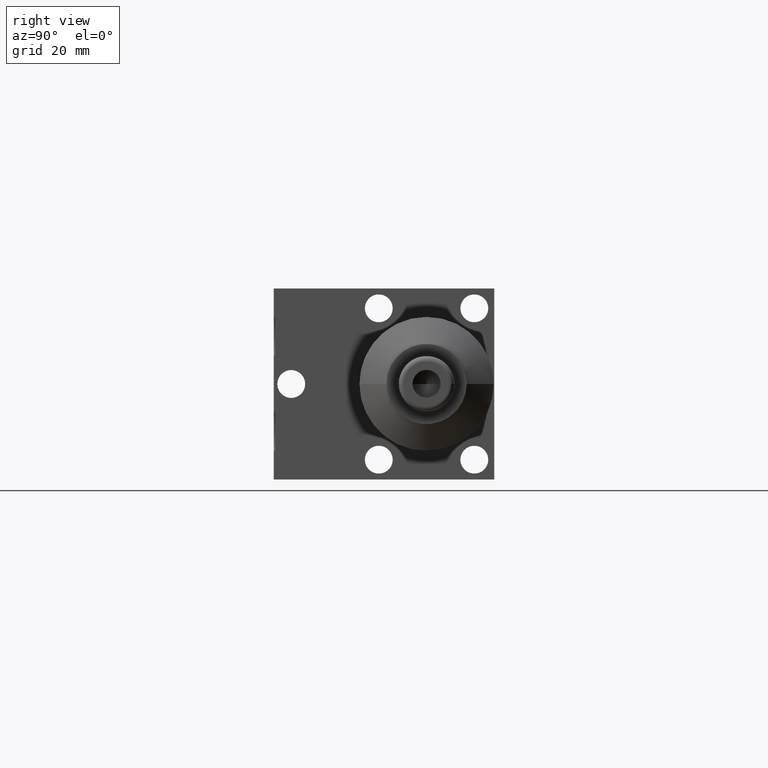
[diagram: clean part render]
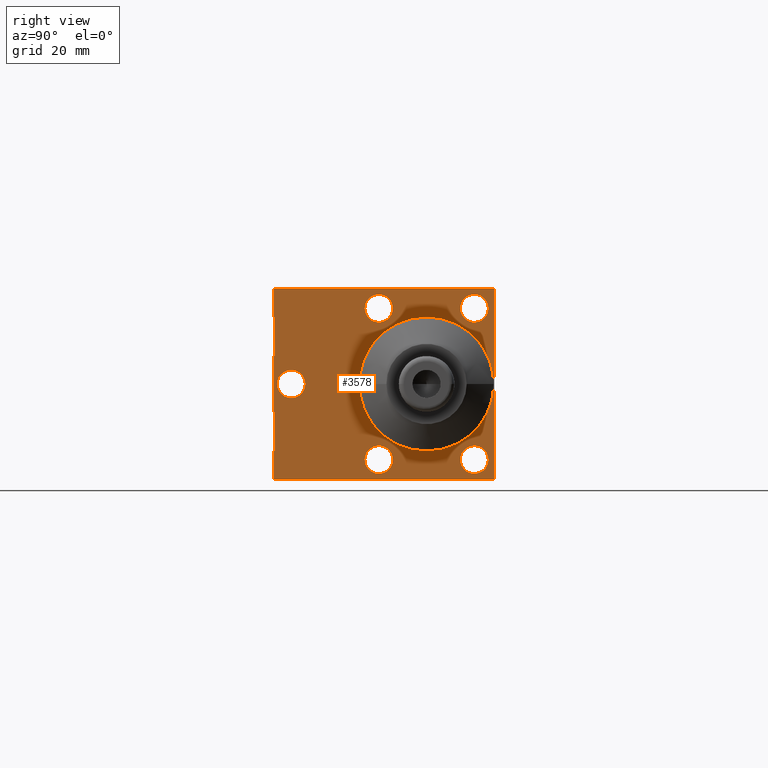
[diagram: same view with one face highlighted and labeled with its STEP entity id]
A machine part, right view. The second image highlights one B-rep face of the part: STEP entity #3578.
In plain terms, the highlighted planar face has unit normal (1, 0, 0).
Its self-contained STEP definition (entity closure, byte-faithful):
#634=CARTESIAN_POINT('',(0.E0,0.E0,0.E0));
#635=DIRECTION('',(1.E0,0.E0,0.E0));
#636=DIRECTION('',(0.E0,0.E0,1.E0));
#637=AXIS2_PLACEMENT_3D('',#634,#635,#636);
#642=CARTESIAN_POINT('',(0.E0,0.E0,0.E0));
#643=DIRECTION('',(1.E0,0.E0,0.E0));
#644=DIRECTION('',(0.E0,0.E0,-1.E0));
#645=AXIS2_PLACEMENT_3D('',#642,#643,#644);
#650=CARTESIAN_POINT('',(0.E0,3.75E-1,5.94E-1));
#651=DIRECTION('',(-1.E0,0.E0,0.E0));
#652=DIRECTION('',(0.E0,-1.E0,0.E0));
#653=AXIS2_PLACEMENT_3D('',#650,#651,#652);
#658=CARTESIAN_POINT('',(0.E0,3.75E-1,5.94E-1));
#659=DIRECTION('',(-1.E0,0.E0,0.E0));
#660=DIRECTION('',(0.E0,1.E0,0.E0));
#661=AXIS2_PLACEMENT_3D('',#658,#659,#660);
#666=CARTESIAN_POINT('',(0.E0,3.75E-1,-5.94E-1));
#667=DIRECTION('',(-1.E0,0.E0,0.E0));
#668=DIRECTION('',(0.E0,-1.E0,0.E0));
#669=AXIS2_PLACEMENT_3D('',#666,#667,#668);
#674=CARTESIAN_POINT('',(0.E0,3.75E-1,-5.94E-1));
#675=DIRECTION('',(-1.E0,0.E0,0.E0));
#676=DIRECTION('',(0.E0,1.E0,0.E0));
#677=AXIS2_PLACEMENT_3D('',#674,#675,#676);
#682=CARTESIAN_POINT('',(0.E0,-3.75E-1,5.94E-1));
#683=DIRECTION('',(-1.E0,0.E0,0.E0));
#684=DIRECTION('',(0.E0,-1.E0,0.E0));
#685=AXIS2_PLACEMENT_3D('',#682,#683,#684);
#690=CARTESIAN_POINT('',(0.E0,-3.75E-1,5.94E-1));
#691=DIRECTION('',(-1.E0,0.E0,0.E0));
#692=DIRECTION('',(0.E0,1.E0,0.E0));
#693=AXIS2_PLACEMENT_3D('',#690,#691,#692);
#698=CARTESIAN_POINT('',(0.E0,-3.75E-1,-5.94E-1));
#699=DIRECTION('',(-1.E0,0.E0,0.E0));
#700=DIRECTION('',(0.E0,-1.E0,0.E0));
#701=AXIS2_PLACEMENT_3D('',#698,#699,#700);
#706=CARTESIAN_POINT('',(0.E0,-3.75E-1,-5.94E-1));
#707=DIRECTION('',(-1.E0,0.E0,0.E0));
#708=DIRECTION('',(0.E0,1.E0,0.E0));
#709=AXIS2_PLACEMENT_3D('',#706,#707,#708);
#714=CARTESIAN_POINT('',(0.E0,-1.062E0,0.E0));
#715=DIRECTION('',(-1.E0,0.E0,0.E0));
#716=DIRECTION('',(0.E0,-1.E0,0.E0));
#717=AXIS2_PLACEMENT_3D('',#714,#715,#716);
#722=CARTESIAN_POINT('',(0.E0,-1.062E0,0.E0));
#723=DIRECTION('',(-1.E0,0.E0,0.E0));
#724=DIRECTION('',(0.E0,1.E0,0.E0));
#725=AXIS2_PLACEMENT_3D('',#722,#723,#724);
#730=DIRECTION('',(0.E0,0.E0,1.E0));
#731=VECTOR('',#730,2.985900199270E-1);
#732=CARTESIAN_POINT('',(0.E0,-1.189E0,-5.242950099635E-1));
#733=LINE('',#732,#731);
#737=DIRECTION('',(0.E0,1.E0,0.E0));
#738=VECTOR('',#737,1.E-2);
#739=CARTESIAN_POINT('',(0.E0,-1.199E0,-2.257049900365E-1));
#740=LINE('',#739,#738);
#744=DIRECTION('',(0.E0,1.E0,0.E0));
#745=VECTOR('',#744,1.E-2);
#746=CARTESIAN_POINT('',(0.E0,-1.199E0,2.257049900365E-1));
#747=LINE('',#746,#745);
#751=DIRECTION('',(0.E0,0.E0,-1.E0));
#752=VECTOR('',#751,2.985900199270E-1);
#753=CARTESIAN_POINT('',(0.E0,-1.189E0,5.242950099635E-1));
#754=LINE('',#753,#752);
#758=DIRECTION('',(0.E0,1.E0,0.E0));
#759=VECTOR('',#758,1.E-2);
#760=CARTESIAN_POINT('',(0.E0,-1.199E0,5.242950099635E-1));
#761=LINE('',#760,#759);
#765=DIRECTION('',(0.E0,1.E0,0.E0));
#766=VECTOR('',#765,1.E-2);
#767=CARTESIAN_POINT('',(0.E0,-1.199E0,-5.242950099635E-1));
#768=LINE('',#767,#766);
#942=DIRECTION('',(0.E0,1.E0,0.E0));
#943=VECTOR('',#942,1.73E0);
#944=CARTESIAN_POINT('',(0.E0,-1.199E0,7.5E-1));
#945=LINE('',#944,#943);
#964=DIRECTION('',(0.E0,0.E0,1.E0));
#965=VECTOR('',#964,2.257049900365E-1);
#966=CARTESIAN_POINT('',(0.E0,-1.199E0,5.242950099635E-1));
#967=LINE('',#966,#965);
#986=DIRECTION('',(0.E0,0.E0,1.E0));
#987=VECTOR('',#986,2.257049900365E-1);
#988=CARTESIAN_POINT('',(0.E0,-1.199E0,-7.5E-1));
#989=LINE('',#988,#987);
#1001=DIRECTION('',(0.E0,0.E0,1.E0));
#1002=VECTOR('',#1001,4.514099800730E-1);
#1003=CARTESIAN_POINT('',(0.E0,-1.199E0,-2.257049900365E-1));
#1004=LINE('',#1003,#1002);
#1615=DIRECTION('',(0.E0,-1.E0,0.E0));
#1616=VECTOR('',#1615,1.73E0);
#1617=CARTESIAN_POINT('',(0.E0,5.31E-1,-7.5E-1));
#1618=LINE('',#1617,#1616);
#1629=DIRECTION('',(0.E0,0.E0,-1.E0));
#1630=VECTOR('',#1629,1.5E0);
#1631=CARTESIAN_POINT('',(0.E0,5.31E-1,7.5E-1));
#1632=LINE('',#1631,#1630);
#2712=CARTESIAN_POINT('',(0.E0,0.E0,5.26E-1));
#2713=CARTESIAN_POINT('',(0.E0,0.E0,-5.26E-1));
#2714=VERTEX_POINT('',#2712);
#2715=VERTEX_POINT('',#2713);
#2724=CARTESIAN_POINT('',(0.E0,-1.199E0,7.5E-1));
#2725=CARTESIAN_POINT('',(0.E0,5.31E-1,7.5E-1));
#2726=VERTEX_POINT('',#2724);
#2727=VERTEX_POINT('',#2725);
#2728=CARTESIAN_POINT('',(0.E0,5.31E-1,-7.5E-1));
#2729=CARTESIAN_POINT('',(0.E0,-1.199E0,-7.5E-1));
#2730=VERTEX_POINT('',#2728);
#2731=VERTEX_POINT('',#2729);
#2748=CARTESIAN_POINT('',(0.E0,2.655E-1,5.94E-1));
#2749=CARTESIAN_POINT('',(0.E0,4.845E-1,5.94E-1));
#2750=VERTEX_POINT('',#2748);
#2751=VERTEX_POINT('',#2749);
#2810=CARTESIAN_POINT('',(0.E0,-1.199E0,-5.242950099635E-1));
#2812=VERTEX_POINT('',#2810);
#2832=CARTESIAN_POINT('',(0.E0,-1.189E0,5.242950099635E-1));
#2833=CARTESIAN_POINT('',(0.E0,-1.189E0,2.257049900365E-1));
#2834=VERTEX_POINT('',#2832);
#2835=VERTEX_POINT('',#2833);
#2836=CARTESIAN_POINT('',(0.E0,-1.199E0,5.242950099635E-1));
#2837=VERTEX_POINT('',#2836);
#2838=CARTESIAN_POINT('',(0.E0,-1.199E0,2.257049900365E-1));
#2839=VERTEX_POINT('',#2838);
#2842=CARTESIAN_POINT('',(0.E0,-1.189E0,-5.242950099635E-1));
#2843=CARTESIAN_POINT('',(0.E0,-1.189E0,-2.257049900365E-1));
#2844=VERTEX_POINT('',#2842);
#2845=VERTEX_POINT('',#2843);
#2846=CARTESIAN_POINT('',(0.E0,-1.199E0,-2.257049900365E-1));
#2847=VERTEX_POINT('',#2846);
#2868=CARTESIAN_POINT('',(0.E0,2.655E-1,-5.94E-1));
#2869=CARTESIAN_POINT('',(0.E0,4.845E-1,-5.94E-1));
#2870=VERTEX_POINT('',#2868);
#2871=VERTEX_POINT('',#2869);
#2876=CARTESIAN_POINT('',(0.E0,-4.845E-1,5.94E-1));
#2877=CARTESIAN_POINT('',(0.E0,-2.655E-1,5.94E-1));
#2878=VERTEX_POINT('',#2876);
#2879=VERTEX_POINT('',#2877);
#2884=CARTESIAN_POINT('',(0.E0,-4.845E-1,-5.94E-1));
#2885=CARTESIAN_POINT('',(0.E0,-2.655E-1,-5.94E-1));
#2886=VERTEX_POINT('',#2884);
#2887=VERTEX_POINT('',#2885);
#2892=CARTESIAN_POINT('',(0.E0,-1.1715E0,0.E0));
#2893=CARTESIAN_POINT('',(0.E0,-9.525E-1,0.E0));
#2894=VERTEX_POINT('',#2892);
#2895=VERTEX_POINT('',#2893);
#3513=CARTESIAN_POINT('',(0.E0,0.E0,0.E0));
#3514=DIRECTION('',(1.E0,0.E0,0.E0));
#3515=DIRECTION('',(0.E0,0.E0,-1.E0));
#3516=AXIS2_PLACEMENT_3D('',#3513,#3514,#3515);
#3517=PLANE('',#3516);
#3519=ORIENTED_EDGE('',*,*,#3518,.T.);
#3521=ORIENTED_EDGE('',*,*,#3520,.F.);
#3523=ORIENTED_EDGE('',*,*,#3522,.T.);
#3525=ORIENTED_EDGE('',*,*,#3524,.T.);
#3527=ORIENTED_EDGE('',*,*,#3526,.F.);
#3529=ORIENTED_EDGE('',*,*,#3528,.F.);
#3531=ORIENTED_EDGE('',*,*,#3530,.T.);
#3533=ORIENTED_EDGE('',*,*,#3532,.T.);
#3535=ORIENTED_EDGE('',*,*,#3534,.T.);
#3537=ORIENTED_EDGE('',*,*,#3536,.T.);
#3539=ORIENTED_EDGE('',*,*,#3538,.T.);
#3541=ORIENTED_EDGE('',*,*,#3540,.T.);
#3542=EDGE_LOOP('',(#3519,#3521,#3523,#3525,#3527,#3529,#3531,#3533,#3535,#3537,
#3539,#3541));
#3543=FACE_OUTER_BOUND('',#3542,.F.);
#3545=ORIENTED_EDGE('',*,*,#3544,.F.);
#3547=ORIENTED_EDGE('',*,*,#3546,.F.);
#3548=EDGE_LOOP('',(#3545,#3547));
#3549=FACE_BOUND('',#3548,.F.);
#3551=ORIENTED_EDGE('',*,*,#3550,.F.);
#3553=ORIENTED_EDGE('',*,*,#3552,.F.);
#3554=EDGE_LOOP('',(#3551,#3553));
#3555=FACE_BOUND('',#3554,.F.);
#3557=ORIENTED_EDGE('',*,*,#3556,.F.);
#3559=ORIENTED_EDGE('',*,*,#3558,.F.);
#3560=EDGE_LOOP('',(#3557,#3559));
#3561=FACE_BOUND('',#3560,.F.);
#3563=ORIENTED_EDGE('',*,*,#3562,.F.);
#3565=ORIENTED_EDGE('',*,*,#3564,.F.);
#3566=EDGE_LOOP('',(#3563,#3565));
#3567=FACE_BOUND('',#3566,.F.);
#3569=ORIENTED_EDGE('',*,*,#3568,.F.);
#3571=ORIENTED_EDGE('',*,*,#3570,.F.);
#3572=EDGE_LOOP('',(#3569,#3571));
#3573=FACE_BOUND('',#3572,.F.);
#3574=ORIENTED_EDGE('',*,*,#3491,.T.);
#3575=ORIENTED_EDGE('',*,*,#3507,.T.);
#3576=EDGE_LOOP('',(#3574,#3575));
#3577=FACE_BOUND('',#3576,.F.);
#638=CIRCLE('',#637,5.26E-1);
#646=CIRCLE('',#645,5.26E-1);
#654=CIRCLE('',#653,1.095E-1);
#662=CIRCLE('',#661,1.095E-1);
#670=CIRCLE('',#669,1.095E-1);
#678=CIRCLE('',#677,1.095E-1);
#686=CIRCLE('',#685,1.095E-1);
#694=CIRCLE('',#693,1.095E-1);
#702=CIRCLE('',#701,1.095E-1);
#710=CIRCLE('',#709,1.095E-1);
#718=CIRCLE('',#717,1.095E-1);
#726=CIRCLE('',#725,1.095E-1);
#3491=EDGE_CURVE('',#2714,#2715,#638,.T.);
#3507=EDGE_CURVE('',#2715,#2714,#646,.T.);
#3518=EDGE_CURVE('',#2844,#2845,#733,.T.);
#3520=EDGE_CURVE('',#2847,#2845,#740,.T.);
#3522=EDGE_CURVE('',#2847,#2839,#1004,.T.);
#3524=EDGE_CURVE('',#2839,#2835,#747,.T.);
#3526=EDGE_CURVE('',#2834,#2835,#754,.T.);
#3528=EDGE_CURVE('',#2837,#2834,#761,.T.);
#3530=EDGE_CURVE('',#2837,#2726,#967,.T.);
#3532=EDGE_CURVE('',#2726,#2727,#945,.T.);
#3534=EDGE_CURVE('',#2727,#2730,#1632,.T.);
#3536=EDGE_CURVE('',#2730,#2731,#1618,.T.);
#3538=EDGE_CURVE('',#2731,#2812,#989,.T.);
#3540=EDGE_CURVE('',#2812,#2844,#768,.T.);
#3544=EDGE_CURVE('',#2750,#2751,#654,.T.);
#3546=EDGE_CURVE('',#2751,#2750,#662,.T.);
#3550=EDGE_CURVE('',#2870,#2871,#670,.T.);
#3552=EDGE_CURVE('',#2871,#2870,#678,.T.);
#3556=EDGE_CURVE('',#2878,#2879,#686,.T.);
#3558=EDGE_CURVE('',#2879,#2878,#694,.T.);
#3562=EDGE_CURVE('',#2886,#2887,#702,.T.);
#3564=EDGE_CURVE('',#2887,#2886,#710,.T.);
#3568=EDGE_CURVE('',#2894,#2895,#718,.T.);
#3570=EDGE_CURVE('',#2895,#2894,#726,.T.);
#3578=ADVANCED_FACE('',(#3543,#3549,#3555,#3561,#3567,#3573,#3577),#3517,.T.);